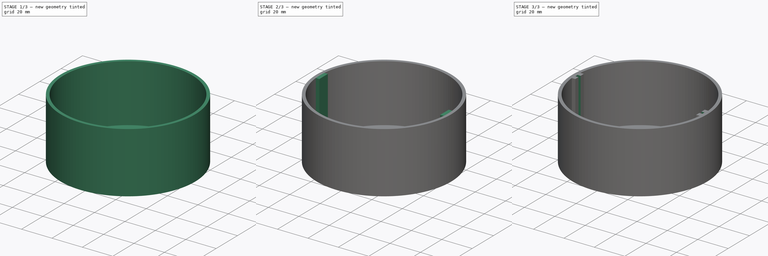
[diagram: build sequence overview — one tinted view per stage of 3, left to right]
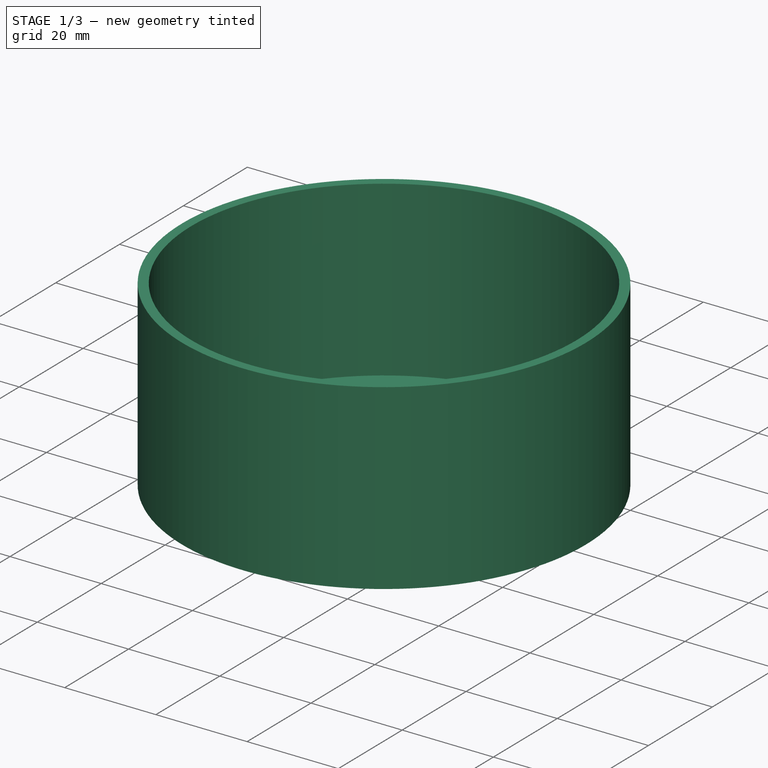
[diagram: stage 1 of 3 — iso view after this stage's code; geometry added in this stage tinted green]
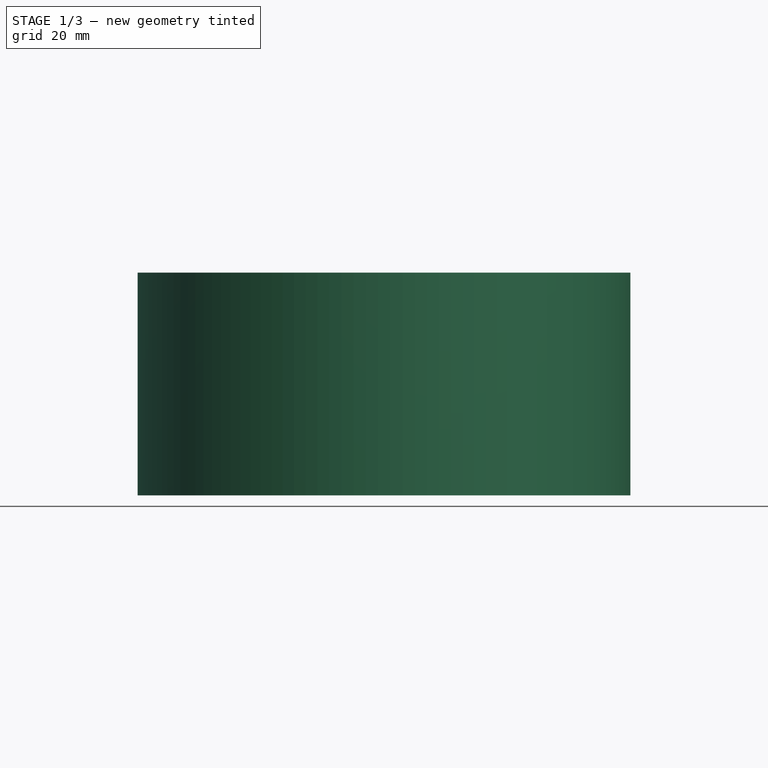
[diagram: stage 1 of 3 — front view after this stage's code; geometry added in this stage tinted green]
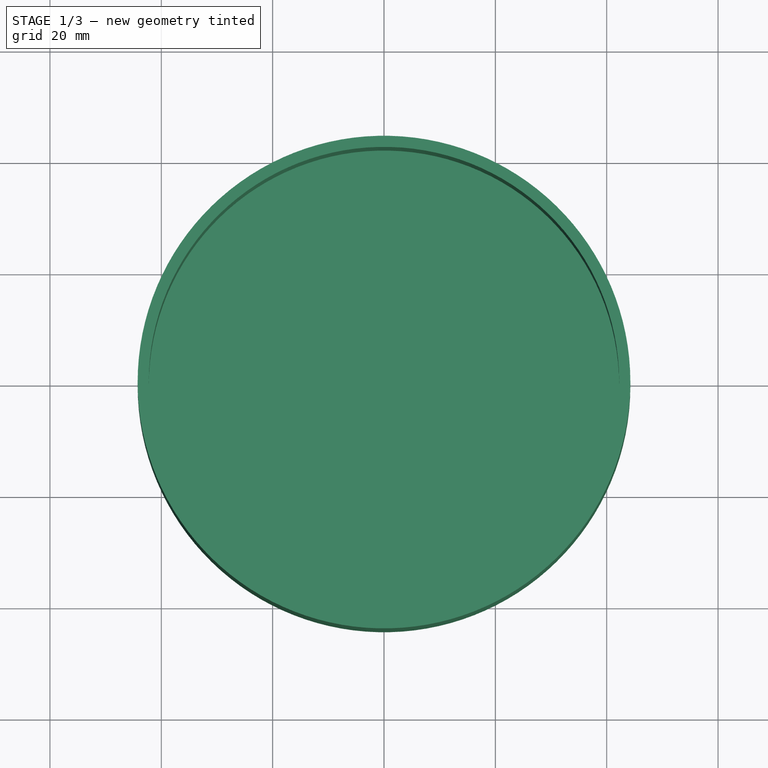
[diagram: stage 1 of 3 — top view after this stage's code; geometry added in this stage tinted green]
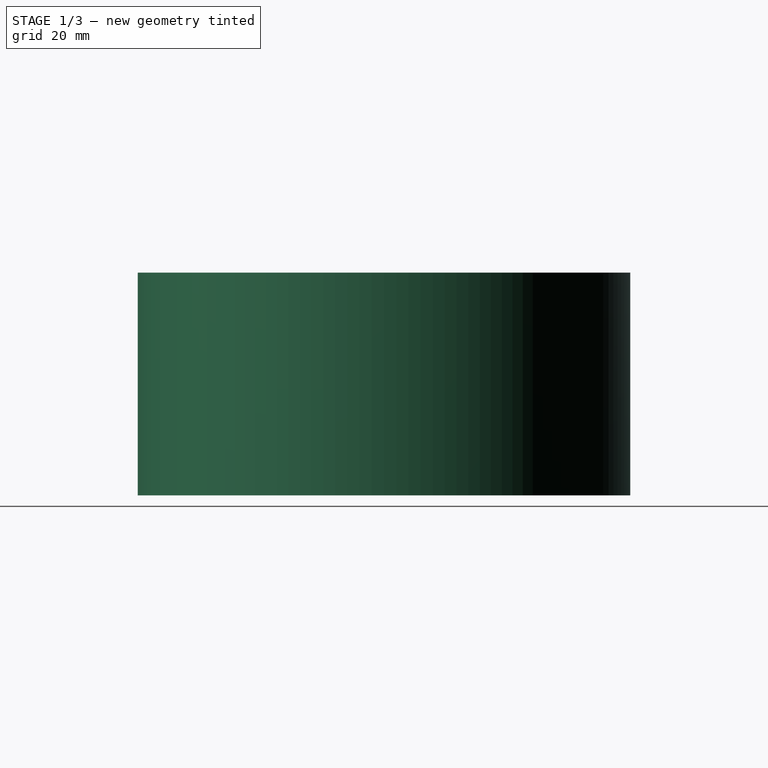
[diagram: stage 1 of 3 — right view after this stage's code; geometry added in this stage tinted green]
FCSTD DOCUMENT  (FreeCAD 0.20R29177 (Git))
Label: AQI Pipe Cap Fitting
License: All rights reserved
LicenseURL: http://en.wikipedia.org/wiki/All_rights_reserved
objects: Sketcher::SketchObject×5, PartDesign::Pocket×3, PartDesign::Pad×2, PartDesign::Body×1
note: 16 computed .brp shape members not serialized (recipe doc carries the construction recipe); baked Part::Feature solids carry a one-line shape summary decoded from their .brp

FEATURE [Sketcher::SketchObject] Sketch
  FullyConstrained = true
  MapMode = 5
  Support = -> [XY_Plane]
  sketch-geometry (1):
    g0: Circle CenterX=0 CenterY=0 CenterZ=0 NormalX=0 NormalY=0 NormalZ=1 AngleXU=0 Radius=44.25
  constraints (2):
    c: Coincident(g0,g-1)
    c: Diameter(g0) = 88.5
FEATURE [PartDesign::Pad] Pad
  Direction = (0,0,1)
  Length = 40
  Length2 = 10
  Profile = -> Sketch
  ReferenceAxis = -> Sketch [N_Axis]
  Type = 0
FEATURE [Sketcher::SketchObject] Sketch001
  FullyConstrained = true
  MapMode = 5
  Placement = pos=(0,0,40) rot=(0,0,1;0rad)
  Support = -> [Pad]
  sketch-geometry (1):
    g0: Circle CenterX=0 CenterY=0 CenterZ=0 NormalX=0 NormalY=0 NormalZ=1 AngleXU=0 Radius=42.25
  constraints (2):
    c: Coincident(g0,g-1)
    c: Diameter(g0) = 84.5
FEATURE [PartDesign::Pocket] Pocket
  BaseFeature = -> Pad
  Direction = (0,0,-1)
  Length = 38
  Length2 = 5
  Profile = -> Sketch001
  ReferenceAxis = -> Sketch001 [N_Axis]
  Type = 0
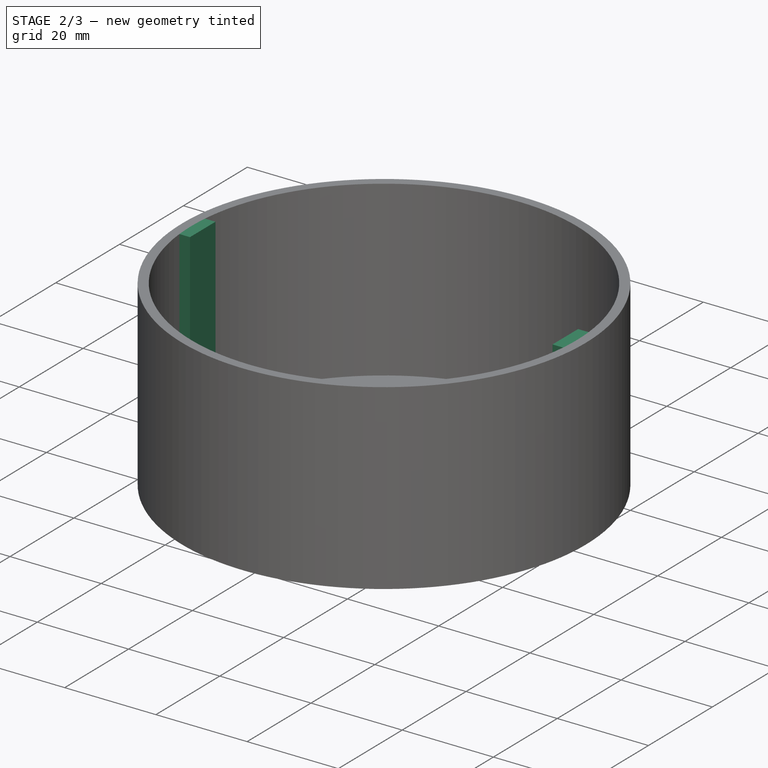
[diagram: stage 2 of 3 — iso view after this stage's code; geometry added in this stage tinted green]
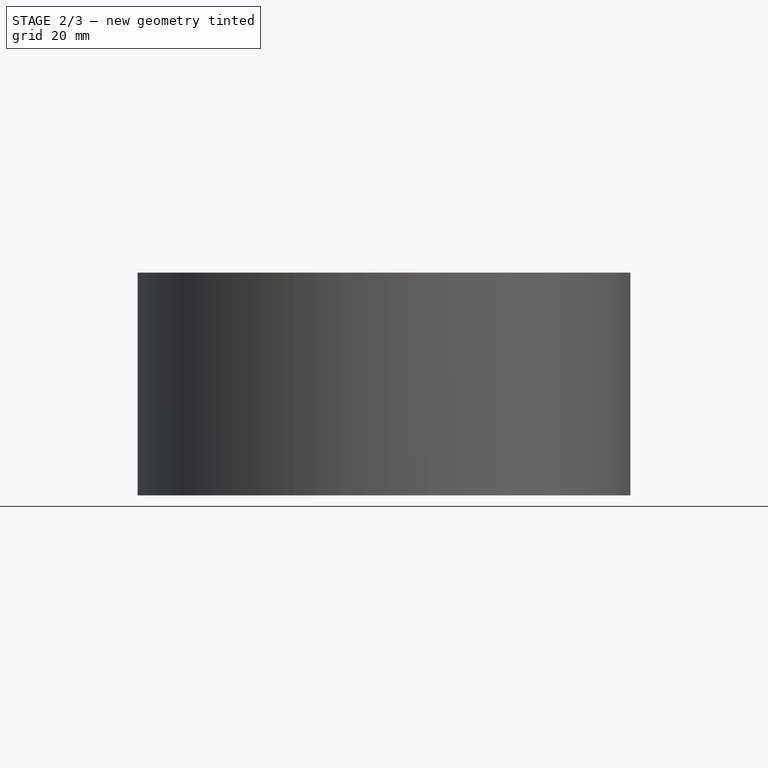
[diagram: stage 2 of 3 — front view after this stage's code; geometry added in this stage tinted green]
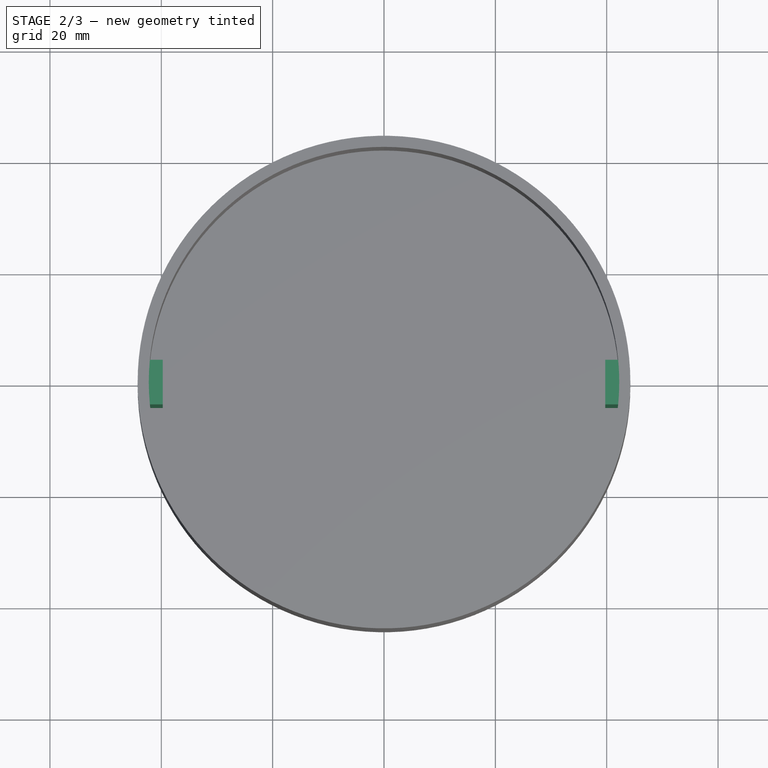
[diagram: stage 2 of 3 — top view after this stage's code; geometry added in this stage tinted green]
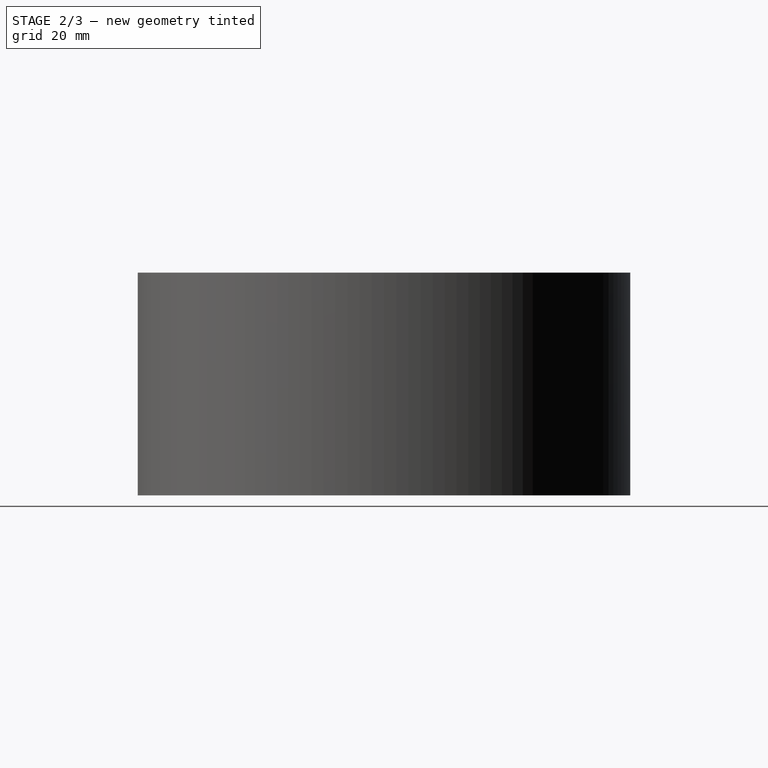
[diagram: stage 2 of 3 — right view after this stage's code; geometry added in this stage tinted green]
FEATURE [Sketcher::SketchObject] Sketch002
  FullyConstrained = true
  MapMode = 5
  Placement = pos=(0,0,2) rot=(0,0,1;0rad)
  Support = -> [Pocket]
  sketch-geometry (8):
    g0: LineSegment StartX=-42.75 StartY=4 StartZ=0 EndX=-39.75 EndY=4 EndZ=0
    g1: LineSegment StartX=-39.75 StartY=4 StartZ=0 EndX=-39.75 EndY=-4 EndZ=0
    g2: LineSegment StartX=-39.75 StartY=-4 StartZ=0 EndX=-42.75 EndY=-4 EndZ=0
    g3: LineSegment StartX=-42.75 StartY=-4 StartZ=0 EndX=-42.75 EndY=4 EndZ=0
    g4: LineSegment StartX=39.75 StartY=4 StartZ=0 EndX=42.75 EndY=4 EndZ=0
    g5: LineSegment StartX=42.75 StartY=4 StartZ=0 EndX=42.75 EndY=-4 EndZ=0
    g6: LineSegment StartX=42.75 StartY=-4 StartZ=0 EndX=39.75 EndY=-4 EndZ=0
    g7: LineSegment StartX=39.75 StartY=-4 StartZ=0 EndX=39.75 EndY=4 EndZ=0
  constraints (24):
    c: Coincident(g0,g1)
    c: Coincident(g1,g2)
    c: Coincident(g2,g3)
    c: Coincident(g3,g0)
    c: Horizontal(g0)
    c: Horizontal(g2)
    c: Vertical(g1)
    c: Vertical(g3)
    c: Coincident(g4,g5)
    c: Coincident(g5,g6)
    c: Coincident(g6,g7)
    c: Coincident(g7,g4)
    c: Horizontal(g4)
    c: Horizontal(g6)
    c: Vertical(g5)
    c: Vertical(g7)
    c: DistanceX(g-1,g6) = 39.75
    c: DistanceX(g0,g-1) = 39.75
    c: DistanceX(g2,g1) = 3
    c: DistanceX(g4,g4) = 3
    c: DistanceY(g-1,g4) = 4
    c: DistanceY(g6,g4) = 8
    c: DistanceY(g-1,g0) = 4
    c: DistanceY(g1,g0) = 8
FEATURE [PartDesign::Pad] Pad001
  BaseFeature = -> Pocket
  Direction = (0,0,1)
  Length = 38
  Length2 = 10
  Profile = -> Sketch002
  ReferenceAxis = -> Sketch002 [N_Axis]
  Type = 0
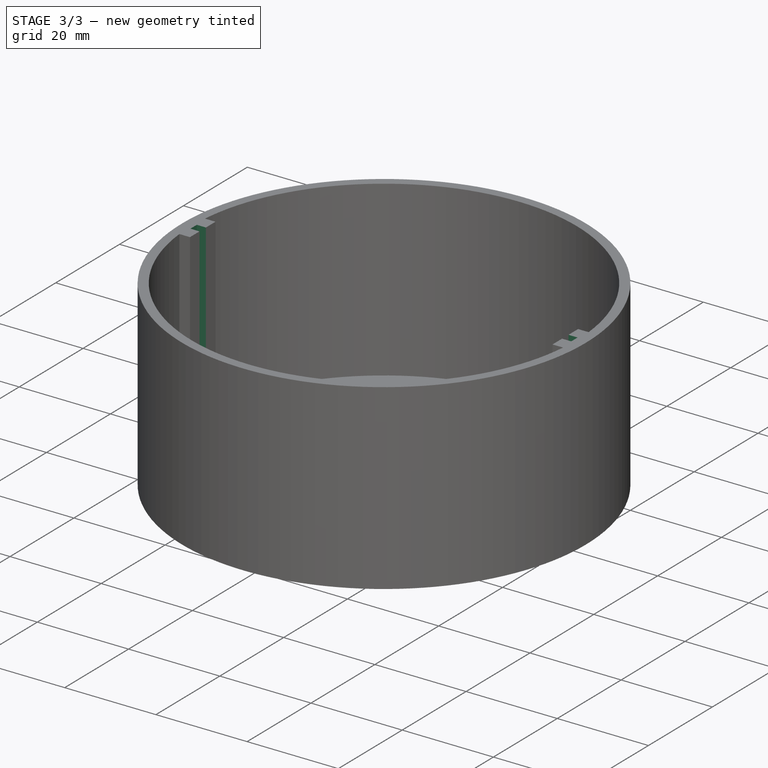
[diagram: stage 3 of 3 — iso view after this stage's code; geometry added in this stage tinted green]
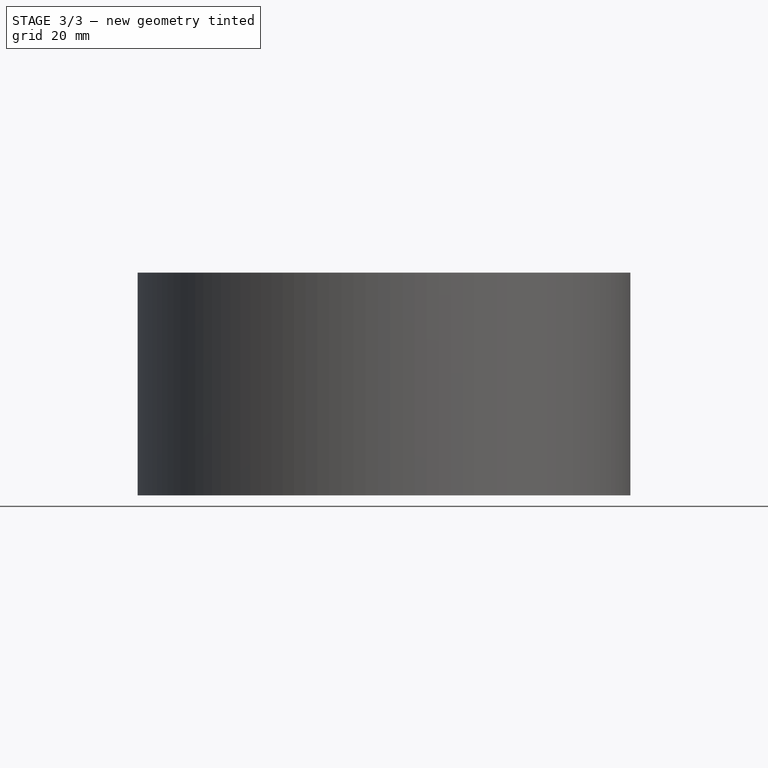
[diagram: stage 3 of 3 — front view after this stage's code; geometry added in this stage tinted green]
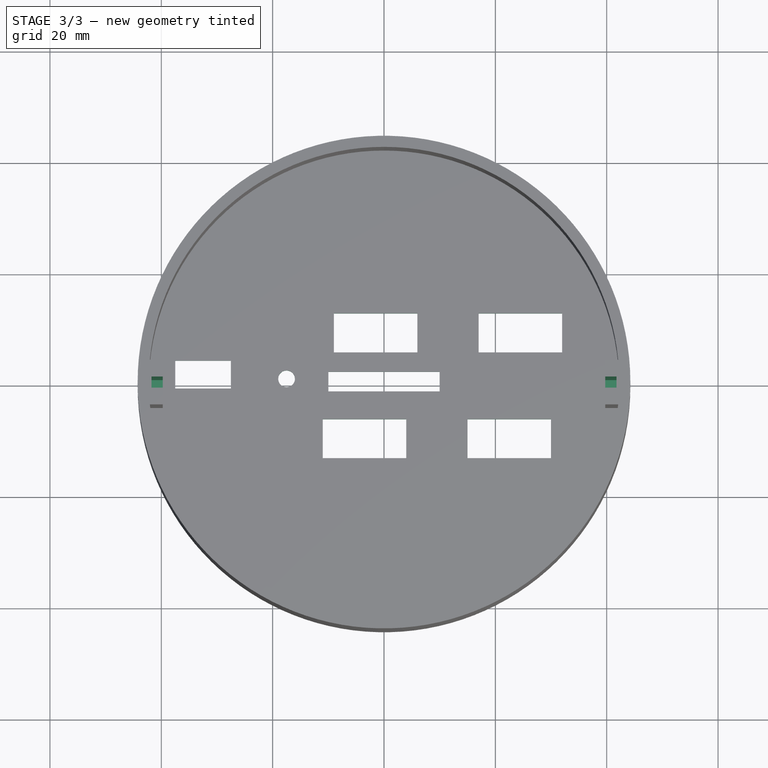
[diagram: stage 3 of 3 — top view after this stage's code; geometry added in this stage tinted green]
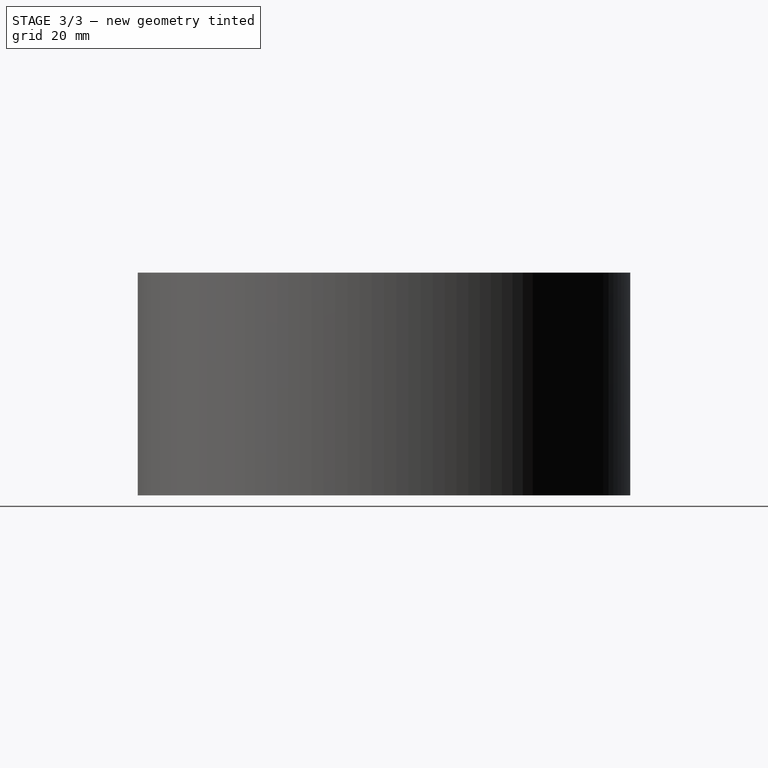
[diagram: stage 3 of 3 — right view after this stage's code; geometry added in this stage tinted green]
FEATURE [Sketcher::SketchObject] Sketch003
  FullyConstrained = true
  MapMode = 5
  Placement = pos=(0,0,40) rot=(0,0,1;0rad)
  Support = -> [Pad001]
  sketch-geometry (8):
    g0: LineSegment StartX=-38.75 StartY=1 StartZ=0 EndX=-41.75 EndY=1 EndZ=0
    g1: LineSegment StartX=-41.75 StartY=1 StartZ=0 EndX=-41.75 EndY=-1 EndZ=0
    g2: LineSegment StartX=-41.75 StartY=-1 StartZ=0 EndX=-38.75 EndY=-1 EndZ=0
    g3: LineSegment StartX=-38.75 StartY=-1 StartZ=0 EndX=-38.75 EndY=1 EndZ=0
    g4: LineSegment StartX=38.75 StartY=1 StartZ=0 EndX=41.75 EndY=1 EndZ=0
    g5: LineSegment StartX=41.75 StartY=1 StartZ=0 EndX=41.75 EndY=-1 EndZ=0
    g6: LineSegment StartX=41.75 StartY=-1 StartZ=0 EndX=38.75 EndY=-1 EndZ=0
    g7: LineSegment StartX=38.75 StartY=-1 StartZ=0 EndX=38.75 EndY=1 EndZ=0
  constraints (24):
    c: Coincident(g0,g1)
    c: Coincident(g1,g2)
    c: Coincident(g2,g3)
    c: Coincident(g3,g0)
    c: Horizontal(g0)
    c: Horizontal(g2)
    c: Vertical(g1)
    c: Vertical(g3)
    c: Coincident(g4,g5)
    c: Coincident(g5,g6)
    c: Coincident(g6,g7)
    c: Coincident(g7,g4)
    c: Horizontal(g4)
    c: Horizontal(g6)
    c: Vertical(g5)
    c: Vertical(g7)
    c: DistanceY(g3,g3) = 2
    c: DistanceY(g7,g7) = 2
    c: DistanceX(g6,g6) = 3
    c: DistanceX(g0,g0) = 3
    c: DistanceX(g1,g5) = 83.5
    c: DistanceX(g1,g-1) = 41.75
    c: DistanceY(g-1,g0) = 1
    c: DistanceY(g-1,g4) = 1
FEATURE [PartDesign::Pocket] Pocket001
  BaseFeature = -> Pad001
  Direction = (0,0,-1)
  Length = 38
  Length2 = 5
  Profile = -> Sketch003
  ReferenceAxis = -> Sketch003 [N_Axis]
  Type = 0
FEATURE [Sketcher::SketchObject] Sketch004
  FullyConstrained = true
  MapMode = 5
  Placement = pos=(0,0,2) rot=(0,0,1;0rad)
  Support = -> [Pocket001]
  sketch-geometry (25):
    g0: LineSegment StartX=-10 StartY=2.5 StartZ=0 EndX=10 EndY=2.5 EndZ=0
    g1: LineSegment StartX=10 StartY=2.5 StartZ=0 EndX=10 EndY=-1 EndZ=0
    g2: LineSegment StartX=10 StartY=-1 StartZ=0 EndX=-10 EndY=-1 EndZ=0
    g3: LineSegment StartX=-10 StartY=-1 StartZ=0 EndX=-10 EndY=2.5 EndZ=0
    g4: LineSegment StartX=-37.5 StartY=4.5 StartZ=0 EndX=-27.5 EndY=4.5 EndZ=0
    g5: LineSegment StartX=-27.5 StartY=4.5 StartZ=0 EndX=-27.5 EndY=-0.5 EndZ=0
    g6: LineSegment StartX=-27.5 StartY=-0.5 StartZ=0 EndX=-37.5 EndY=-0.5 EndZ=0
    g7: LineSegment StartX=-37.5 StartY=-0.5 StartZ=0 EndX=-37.5 EndY=4.5 EndZ=0
    g8: LineSegment StartX=-11 StartY=-6 StartZ=0 EndX=4 EndY=-6 EndZ=0
    g9: LineSegment StartX=4 StartY=-6 StartZ=0 EndX=4 EndY=-13 EndZ=0
    g10: LineSegment StartX=4 StartY=-13 StartZ=0 EndX=-11 EndY=-13 EndZ=0
    g11: LineSegment StartX=-11 StartY=-13 StartZ=0 EndX=-11 EndY=-6 EndZ=0
    g12: LineSegment StartX=15 StartY=-6 StartZ=0 EndX=30 EndY=-6 EndZ=0
    g13: LineSegment StartX=30 StartY=-6 StartZ=0 EndX=30 EndY=-13 EndZ=0
    g14: LineSegment StartX=30 StartY=-13 StartZ=0 EndX=15 EndY=-13 EndZ=0
    g15: LineSegment StartX=15 StartY=-13 StartZ=0 EndX=15 EndY=-6 EndZ=0
    g16: LineSegment StartX=-9 StartY=13 StartZ=0 EndX=6 EndY=13 EndZ=0
    g17: LineSegment StartX=6 StartY=13 StartZ=0 EndX=6 EndY=6 EndZ=0
    g18: LineSegment StartX=6 StartY=6 StartZ=0 EndX=-9 EndY=6 EndZ=0
    g19: LineSegment StartX=-9 StartY=6 StartZ=0 EndX=-9 EndY=13 EndZ=0
    g20: LineSegment StartX=17 StartY=13 StartZ=0 EndX=32 EndY=13 EndZ=0
    g21: LineSegment StartX=32 StartY=13 StartZ=0 EndX=32 EndY=6 EndZ=0
    g22: LineSegment StartX=32 StartY=6 StartZ=0 EndX=17 EndY=6 EndZ=0
    g23: LineSegment StartX=17 StartY=6 StartZ=0 EndX=17 EndY=13 EndZ=0
    g24: Circle CenterX=-17.5 CenterY=1.25 CenterZ=0 NormalX=0 NormalY=0 NormalZ=1 AngleXU=0 Radius=1.5
  constraints (75):
    c: Coincident(g0,g1)
    c: Coincident(g1,g2)
    c: Coincident(g2,g3)
    c: Coincident(g3,g0)
    c: Horizontal(g0)
    c: Horizontal(g2)
    c: Vertical(g1)
    c: Vertical(g3)
    c: DistanceX(g0,g0) = 20
    c: DistanceX(g-1,g0) = 10
    c: DistanceY(g1,g1) = 3.5
    c: DistanceY(g-1,g0) = 2.5
    c: Coincident(g4,g5)
    c: Coincident(g5,g6)
    c: Coincident(g6,g7)
    c: Coincident(g7,g4)
    c: Horizontal(g4)
    c: Horizontal(g6)
    c: Vertical(g5)
    c: Vertical(g7)
    c: DistanceX(g4,g4) = 10
    c: DistanceX(g4,g-1) = 27.5
    c: DistanceY(g5,g5) = 5
    c: DistanceY(g5,g-1) = 0.5
    c: Coincident(g8,g9)
    c: Coincident(g9,g10)
    c: Coincident(g10,g11)
    c: Coincident(g11,g8)
    c: Horizontal(g8)
    c: Horizontal(g10)
    c: Vertical(g9)
    c: Vertical(g11)
    c: Coincident(g12,g13)
    c: Coincident(g13,g14)
    c: Coincident(g14,g15)
    c: Coincident(g15,g12)
    c: Horizontal(g12)
    c: Horizontal(g14)
    c: Vertical(g13)
    c: Vertical(g15)
    c: Coincident(g16,g17)
    c: Coincident(g17,g18)
    c: Coincident(g18,g19)
    c: Coincident(g19,g16)
    c: Horizontal(g16)
    c: Horizontal(g18)
    c: Vertical(g17)
    c: Vertical(g19)
    c: Coincident(g20,g21)
    c: Coincident(g21,g22)
    c: Coincident(g22,g23)
    c: Coincident(g23,g20)
    c: Horizontal(g20)
    c: Horizontal(g22)
    c: Vertical(g21)
    c: Vertical(g23)
    c: DistanceX(g20,g20) = 15
    c: DistanceX(g16,g16) = 15
    c: DistanceX(g14,g14) = 15
    c: DistanceX(g10,g10) = 15
    c: DistanceY(g21,g21) = 7
    c: DistanceY(g17,g17) = 7
    c: DistanceY(g13,g13) = 7
    c: DistanceY(g11,g11) = 7
    c: DistanceY(g14,g9) = 0
    c: DistanceY(g20,g16) = 0
    c: DistanceY(g-1,g20) = 13
    c: DistanceY(g13,g-1) = 13
    c: DistanceX(g10,g13) = 41
    c: DistanceX(g16,g20) = 41
    c: DistanceX(g-1,g13) = 30
    c: DistanceX(g-1,g20) = 32
    c: Diameter(g24) = 3
    c: DistanceX(g24,g0) = 7.5
    c: DistanceY(g-1,g24) = 1.25
FEATURE [PartDesign::Pocket] Pocket002
  BaseFeature = -> Pocket001
  Direction = (0,0,-1)
  Length = 0
  Length2 = 5
  Profile = -> Sketch004
  ReferenceAxis = -> Sketch004 [N_Axis]
  Type = 2
FEATURE [PartDesign::Body] Body
  Group = -> [Sketch,Pad,Sketch001,Pocket,Sketch002,Pad001,Sketch003,Pocket001,Sketch004,Pocket002]
  Origin = -> Origin
  Tip = -> Pocket002
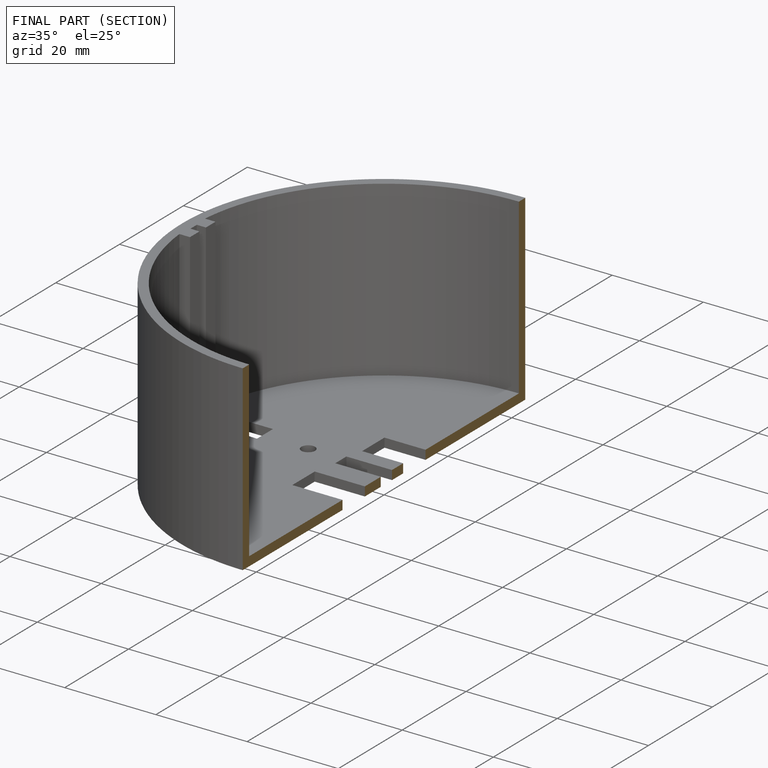
[diagram: finished part — half-section view (interior)]
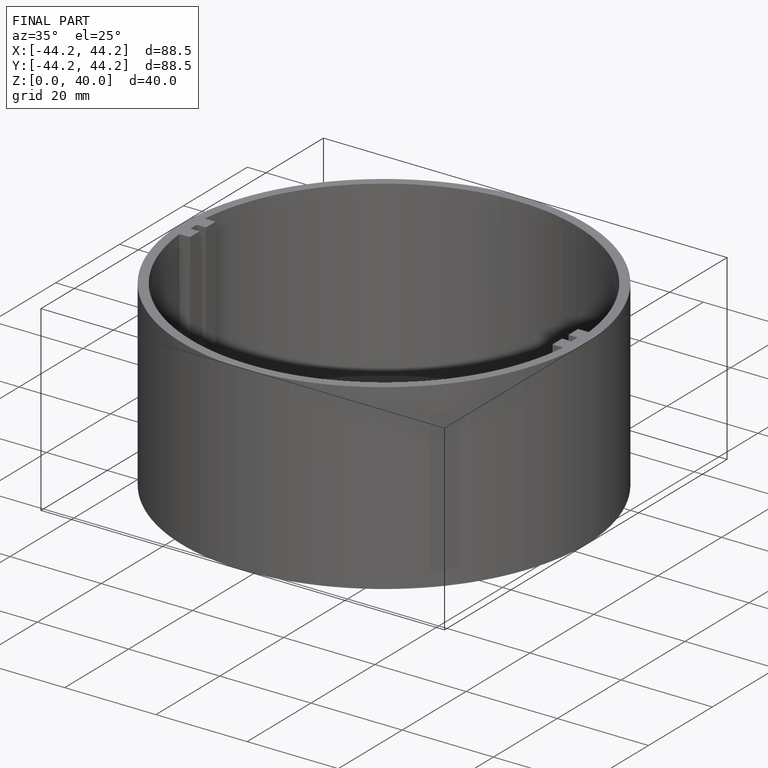
[diagram: finished part — iso view with bounding-box wireframe]
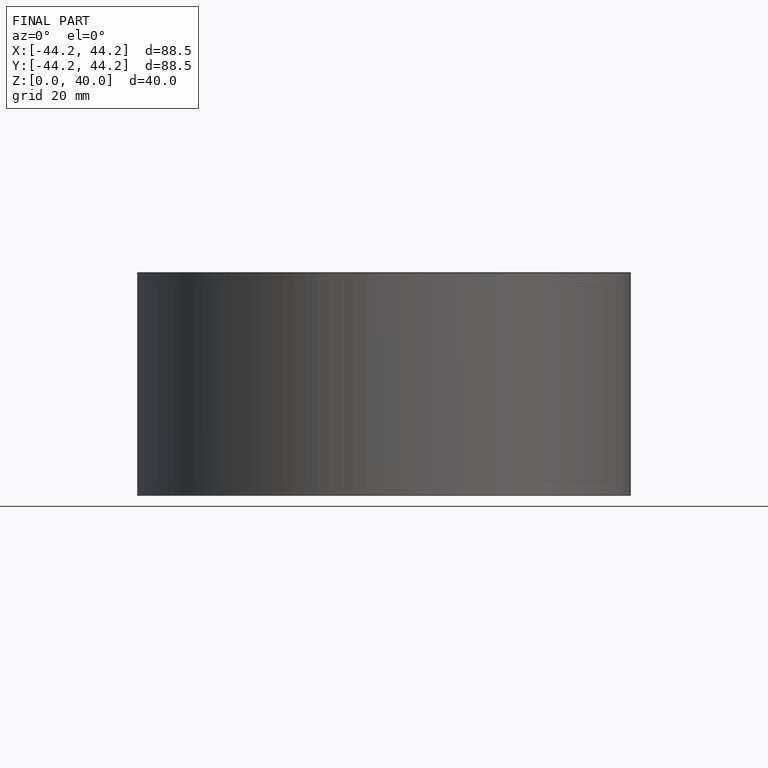
[diagram: finished part — front view with bounding-box wireframe]
